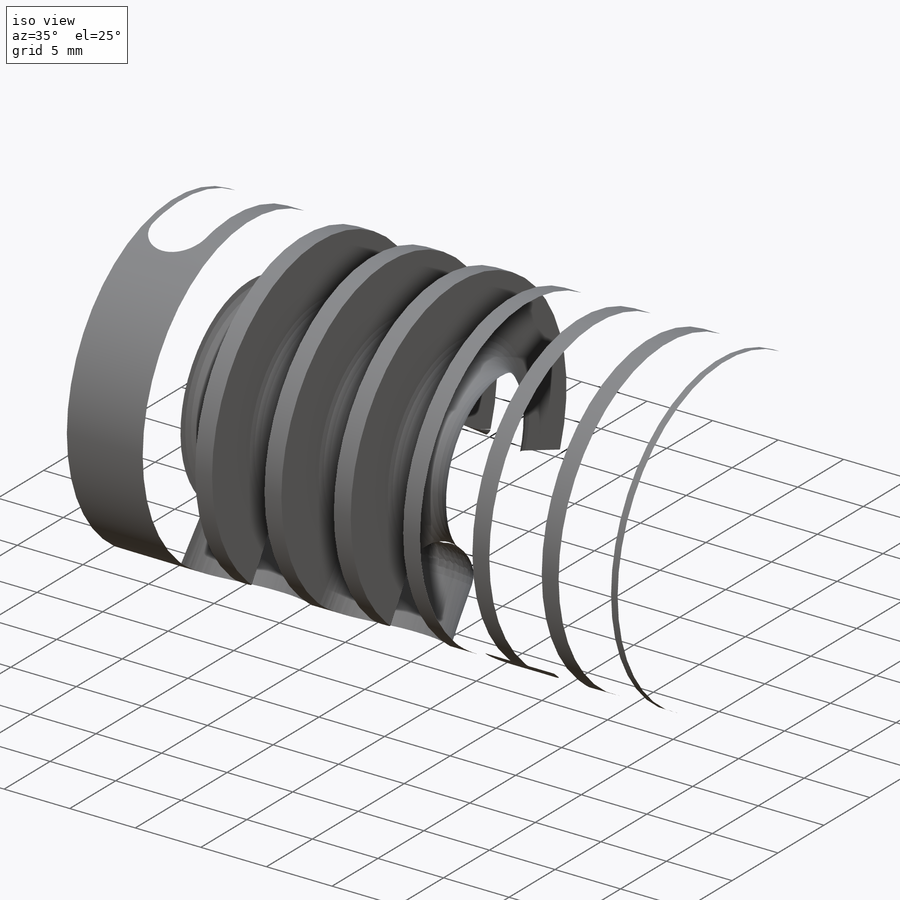
[diagram: iso view]
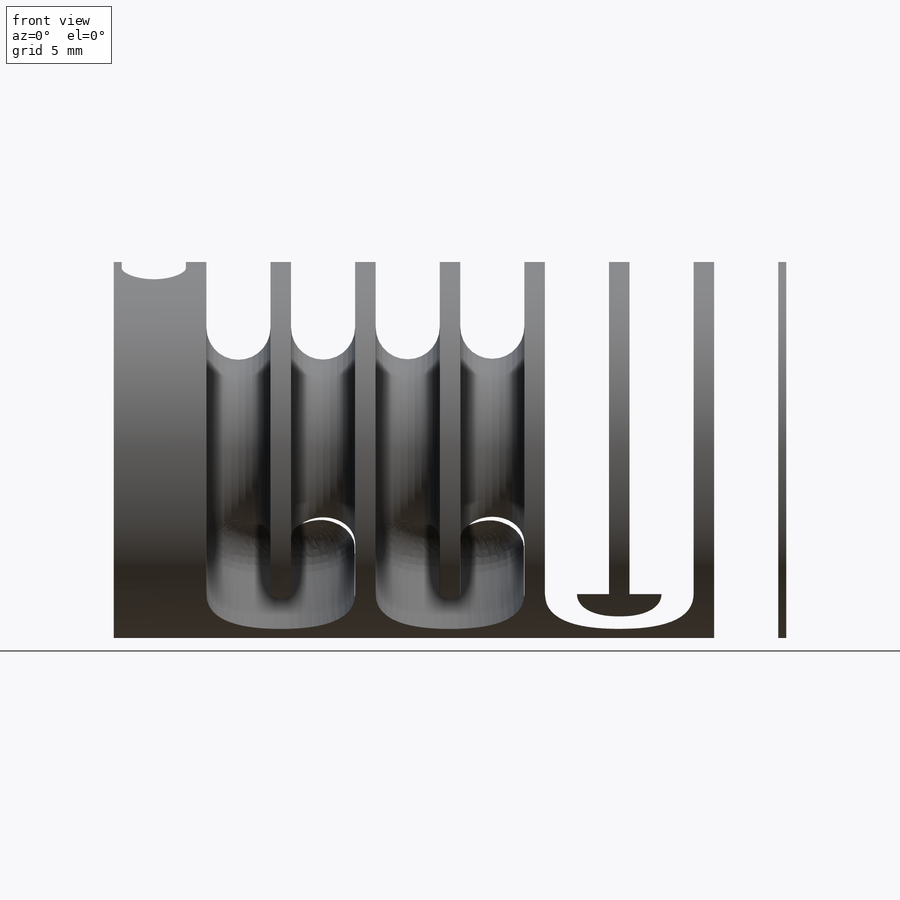
[diagram: front view]
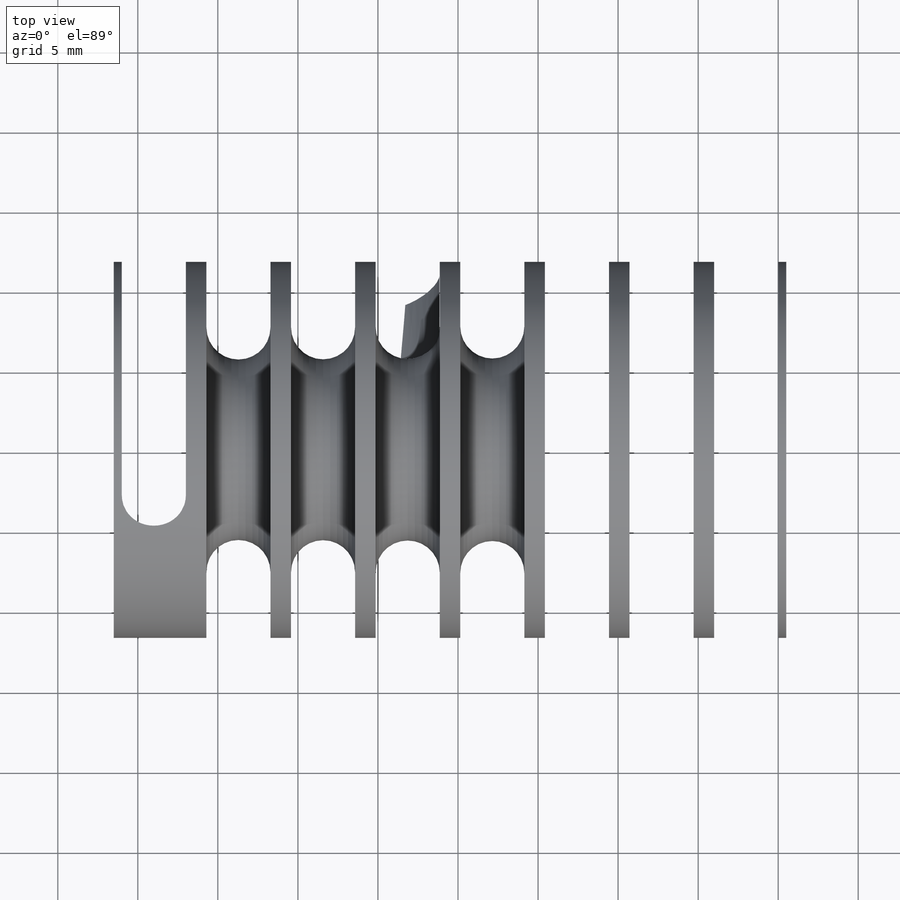
[diagram: top view]
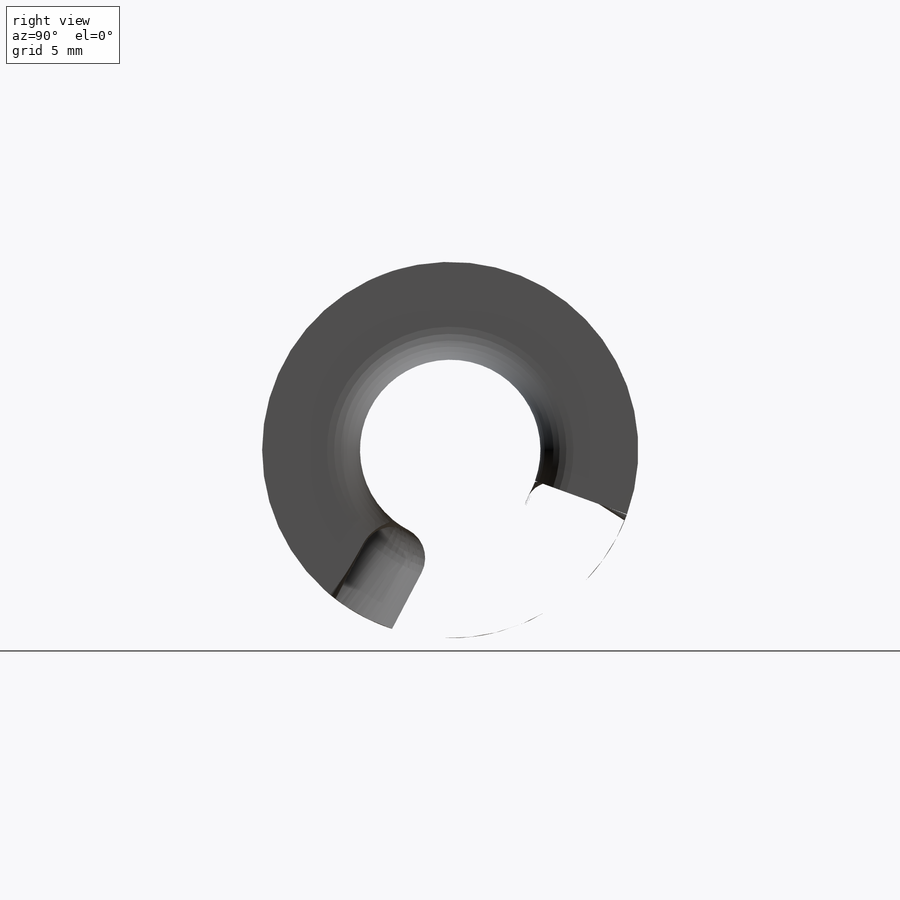
[diagram: right view]
SOLIDWORKS PART (.sldprt)
format: sldprt  version: not decoded by parser v0  size: 2,723,328 bytes
history: native  units: mm
features: sketch x56, plane x16, revolve x10, cut_revolve x2, surface_op x2, material x1, cut_extrude x1 + 4 further entries (+11 scaffold rows collapsed)
feature tree (103):
  scaffold x11  (default folders/planes/origin — collapsed)
  material  "Material <nicht festgelegt>"
  plane  "Ebene1"
  plane  "Ebene2"
  plane  "Ebene3"
  sketch  "Skizze1"  dims[c1.D1=10.015mm c1.D2=12.0mm c1.D3=22.0mm c1.D4=30.0mm c1.D5=3.0mm c1.D6=2.0mm c1.D7=54.0mm c1.D8=84.0mm c1.D9=2.5mm c1.D10=~2.147435mm c2.D10=10.0deg c2.D11=7.0mm c2.D12=7.0mm c2.D13=22.0mm c2.D14=5.0mm c2.D15=54.0mm c2.D16=7.0mm c2.D17=~2.777146mm c3.D17=6.0deg c3.D18=~2.313852mm c3.D19=31.5mm c3.D20=5.0mm c3.D21=~9.516596mm c4.D21=~183.011695deg c5.D21=0.5mm c6.D21=~183.011695deg c7.D21=~9.516596mm c8.D21=~176.988305deg c9.D21=2.0mm c10.D21=~183.011695deg c11.D21=~1.479538mm c12.D21=20.0deg c12.D22=31.5mm c12.D23=36.3mm c12.D24=1.4mm c12.D25=2.4mm c12.D26=2.4mm c12.D27=1.3mm c12.D28=17.5mm c12.D29=1.5mm c12.D30=1.1mm]
  revolve  "Rotation1"  Angle=360deg
  plane  "Ebene5"
  plane  "Mittelebene Anschlüsse"  Offset=31mm
  sketch  "Achsen_Wasseranschlüsse"  dims[c1.D1=~70.373126mm c2.D1=15.0deg c2.D2=~105.515056mm c3.D2=180.0deg]
  sketch  "Skizze27"  dims[c1.D1=28.5mm c1.D2=23.5mm c1.D3=42.0mm c2.D1=28.5mm c2.D2=42.0mm c2.D3=23.5mm c2.D4=10.0mm]
  cut_revolve  "Schnitt-Rotation3"  Angle=360deg
  sketch  "Skizze29"  dims[D1=10.5mm]
  surface_op  "Oberfläche-Linear austragen2"
  plane  "Ebene7"
  plane  "Ebene8"  Offset=37mm
  sketch  "Skizze32"  dims[c1.D5=4.0mm c1.D6=10.0mm c2.D5=2.5mm c2.D6=2.5mm c2.D13=2.5mm c2.D16=0.5mm c2.D8=2.5mm c2.D1=~38.48451mm c2.D2=~76.96902mm c2.D3=10.5mm c2.D4=~5.20182mm c2.D7=~227.700018mm c3.D8=~1.255391mm c3.D9=~250.149315mm c3.D10=~22.449298mm c3.D11=20.0mm c3.D12=~75.96902mm c3.D1=~36.913714mm c3.D2=7.0mm c3.D3=7.0mm c3.D4=~36.913714mm c3.D5=~54.379804mm c4.D2=5.0mm c4.D5=7.0mm c5.D2=~5.285714mm c5.D5=~66.295662mm c5.D6=~122.173292mm c6.D5=~73.827427mm c6.D6=10.0mm c6.D7=7.0mm c6.D3=~25.634523mm c7.D6=~25.634523mm c7.D14=2.0mm c7.D15=2.0mm c7.D2=2.0mm]
  sketch  "Skizze33"  dims[D1=2.0mm]
  sketch  "Skizze34"  dims[D2=10.0mm D1=0.7mm]
  cut_revolve  "Ordner1___EndTag___"  Angle=360deg
  sketch  "3D-Skizze2"
  sketch  "Skizze36"
  sketch  "Skizze47"
  "3D-Skizze9"
  sketch  "Skizze34<2>"
  plane  "Ebene23"
  sketch  "Skizze58"
  sketch  "Skizze59"
  sketch  "Skizze60"
  sketch  "3D-Skizze2<3>"
  sketch  "Skizze36<3>"
  sketch  "3D-Skizze2<4>"
  sketch  "Skizze36<4>"
  sketch  "Skizze37"
  sketch  "3D-Skizze2<5>"
  sketch  "Skizze37<3>"
  sketch  "3D-Skizze2<6>"
  sketch  "Skizze37<5>"
  sketch  "Skizze38"
  "3D-Skizze4"
  "3D-Skizze5"
  sketch  "3D-Skizze5<13>"
  sketch  "3D-Skizze4<15>"
  sketch  "3D-Skizze5<14>"
  sketch  "3D-Skizze4<16>"
  sketch  "3D-Skizze5<15>"
  sketch  "3D-Skizze4<17>"
  sketch  "3D-Skizze5<16>"
  sketch  "3D-Skizze4<18>"
  sketch  "3D-Skizze5<17>"
  sketch  "3D-Skizze4<19>"
  sketch  "3D-Skizze5<18>"
  sketch  "3D-Skizze4<20>"
  sketch  "3D-Skizze5<19>"
  sketch  "3D-Skizze4<21>"
  surface_op  "Oberfläche-Trimmen3"
  plane  "Ebene13"
  plane  "Ebene16"
  plane  "Ebene18"
  sketch  "Skizze50"
  plane  "Ebene19"
  "3D-Skizze11"
  sketch  "Skizze51"  dims[D1=4.0mm D2=5.0mm]
  sketch  "Skizze52"  dims[D2=2.0mm D1=5.0mm]
  plane  "Ebene20"
  sketch  "Skizze53"  dims[D1=2.0mm D2=~7.192424mm]
  plane  "Ebene21"  Offset=1.25mm
  sketch  "Skizze54"
  plane  "Ebene22"
  sketch  "Skizze55"  dims[D1=2.0mm]
  revolve  "Schnitt-Rotation5"  [1 undecoded]
  revolve  "Schnitt-Rotation6"  [1 undecoded]
  sketch  "Skizze52<3>"  dims[c1.D1=360.0deg c2.D1=50.0 c2.D3=10.0mm c2.D2=1.0 c2.D4=10.0mm]
  revolve  "Schnitt-Rotation7"  [1 undecoded]
  sketch  "Skizze52<4>"
  revolve  "Schnitt-Rotation8"  [1 undecoded]
  sketch  "Skizze52<5>"  dims[D1=360.0deg]
  sketch  "Kurvenmuster3"  dims[D1=25.0 D3=10.0mm D2=1.0 D4=10.0mm]
  sketch  "Skizze61"  dims[D1=0.0mm]
  revolve  "Schnitt-Rotation9"  Angle=360deg
  revolve  "Schnitt-Rotation10"  [1 undecoded]
  sketch  "Skizze52<6>"
  sketch  "Skizze62"  dims[D1=4.0mm D2=5.0mm]
  plane  "Ebene24"
  cut_extrude  "Schnitt-Linear austragen7"  [1 undecoded]
  revolve  "Schnitt-Rotation11"  [1 undecoded]
  sketch  "Skizze62<6>"  dims[D1=360.0deg]
  sketch  "Skizze63"
  revolve  "Schnitt-Rotation12"  Angle=360deg
  revolve  "Schnitt-Rotation13"  [1 undecoded]
  sketch  "Skizze63<3>"  dims[D1=360.0deg]
  sketch  "Kurvenmuster4"  dims[D1=25.0 D3=10.0mm D2=1.0 D4=10.0mm]
  sketch  "Kurvenmuster5"  dims[D1=25.0 D3=10.0mm D2=1.0 D4=10.0mm]
decode coverage: 25 of 71 modeling features carry decoded parameters; 4 rows unclassified (native names shown)
note: ~ marks probable driven/reference dimensions
note: 8 parameter values undecoded
summary: no parameter record found for 8 features
note: suppression state not decoded; provenance and decode notes live in map.json
